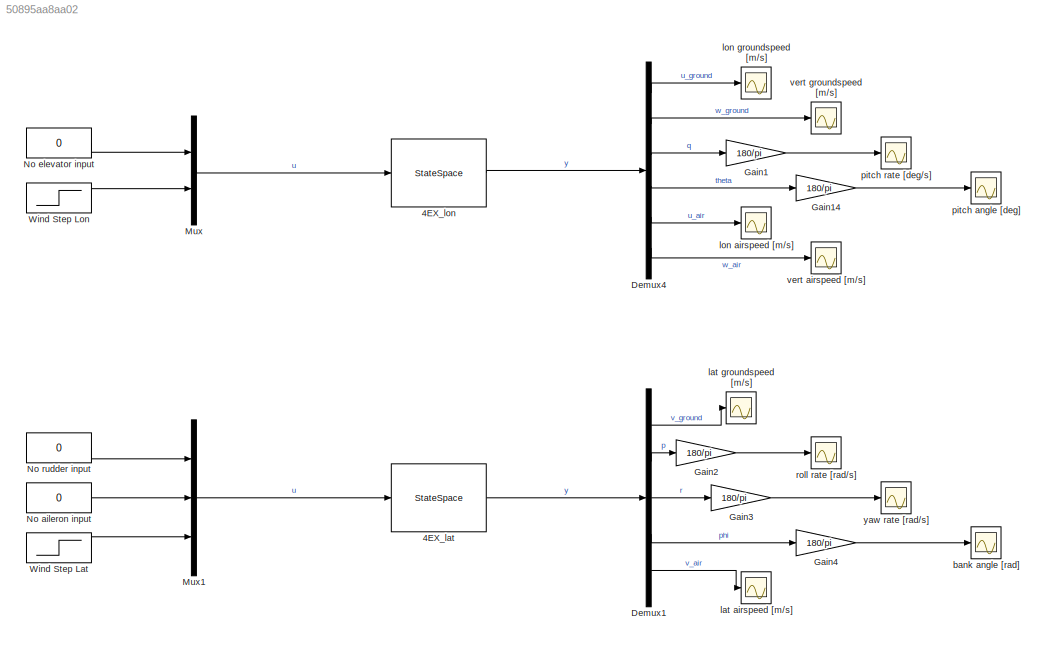
MODEL slx_50895aa8aa02
KIND model
CONFIG AbsTol = auto
CONFIG EnableMultiTasking = off
CONFIG FixedStep = st
CONFIG MaxStep = auto
CONFIG MinStep = auto
CONFIG RelTol = 1e-3
CONFIG SampleTimeConstraint = Unconstrained
CONFIG SolverName = ode4
CONFIG StartTime = 0.0
CONFIG StopTime = simt
WORKSPACE source: mxarray member
WORKSPACE aaaa = [0 0 0 0]
WORKSPACE init_lat = [0 0 0 1]
BLOCK [StateSpace] 4EX_lat
  A = A_lat
  B = B_lat_ext
  C = C_lat_ext
  D = D_lat_ext
  InitialCondition = [0 0 0 0]
  ParameterTunability = Unconstrained
BLOCK [StateSpace] 4EX_lon
  A = A_lon
  B = B_lon_ext
  C = C_lon_ext
  D = D_lon_ext
  InitialCondition = [0 0 0 0]
  ParameterTunability = Unconstrained
BLOCK [Demux] Demux1
  Outputs = 5
BLOCK [Demux] Demux4
  Outputs = 6
BLOCK [Gain] Gain1
  Gain = 180/pi
BLOCK [Gain] Gain14
  Gain = 180/pi
BLOCK [Gain] Gain2
  Gain = 180/pi
BLOCK [Gain] Gain3
  Gain = 180/pi
BLOCK [Gain] Gain4
  Gain = 180/pi
BLOCK [Mux] Mux
  DisplayOption = bar
  Inputs = 2
BLOCK [Mux] Mux1
  DisplayOption = bar
  Inputs = 3
BLOCK [Constant] No aileron input
  Value = 0
BLOCK [Constant] No elevator input
  Value = 0
BLOCK [Constant] No rudder input
  Value = 0
BLOCK [Step] Wind Step Lat
  After = wind_lat
  Before = [0 0 0]
  SampleTime = 0
  Time = w_st_time
BLOCK [Step] Wind Step Lon
  After = wind_lon
  Before = [0 0 0]
  SampleTime = 0
  Time = w_st_time
BLOCK [Scope] bank angle [rad]
  Floating = off
  NumInputPorts = 1
  ScopeSpecificationString = Simulink.scopes.TimeScopeBlockCfg('CurrentConfiguration', extmgr.ConfigurationSet(extmgr.Configuration('Core','General UI',true),extmgr.Configuration('Core','Source UI',true),extmgr.Configuration('Sources','WiredSimulink',true,'DataLoggingVariableName','ScopeData3'),extmgr.Configuration('Visuals','Time Domain',true,'SerializedDisplays',{struct('MinYLimReal','0.46065','MaxYLimReal','1.05993','YLabe...<+1441ch>
BLOCK [Scope] lat airspeed [m//s]
  Floating = off
  NumInputPorts = 1
  ScopeSpecificationString = Simulink.scopes.TimeScopeBlockCfg('CurrentConfiguration', extmgr.ConfigurationSet(extmgr.Configuration('Core','General UI',true),extmgr.Configuration('Core','Source UI',true),extmgr.Configuration('Sources','WiredSimulink',true,'DataLoggingVariableName','ScopeData1'),extmgr.Configuration('Visuals','Time Domain',true,'SerializedDisplays',{struct('MinYLimReal','-6.13812','MaxYLimReal','8.33371','YLab...<+1419ch>
BLOCK [Scope] lat groundspeed [m//s]
  Floating = off
  NumInputPorts = 1
  ScopeSpecificationString = Simulink.scopes.TimeScopeBlockCfg('CurrentConfiguration', extmgr.ConfigurationSet(extmgr.Configuration('Core','General UI',true),extmgr.Configuration('Core','Source UI',true),extmgr.Configuration('Sources','WiredSimulink',true,'DataLoggingVariableName','ScopeData2'),extmgr.Configuration('Visuals','Time Domain',true,'SerializedDisplays',{struct('MinYLimReal','-6.13812','MaxYLimReal','8.33371','YLab...<+1448ch>
BLOCK [Scope] lon airspeed [m//s]
  Floating = off
  NumInputPorts = 1
  ScopeSpecificationString = Simulink.scopes.TimeScopeBlockCfg('CurrentConfiguration', extmgr.ConfigurationSet(extmgr.Configuration('Core','General UI',true),extmgr.Configuration('Core','Source UI',true),extmgr.Configuration('Sources','WiredSimulink',true,'DataLoggingVariableName','ScopeData1'),extmgr.Configuration('Visuals','Time Domain',true,'SerializedDisplays',{struct('MinYLimReal','-68.89733','MaxYLimReal','59.0294','YLa...<+1423ch>
BLOCK [Scope] lon groundspeed [m//s]
  Floating = off
  NumInputPorts = 1
  ScopeSpecificationString = Simulink.scopes.TimeScopeBlockCfg('CurrentConfiguration', extmgr.ConfigurationSet(extmgr.Configuration('Core','General UI',true),extmgr.Configuration('Core','Source UI',true),extmgr.Configuration('Sources','WiredSimulink',true,'DataLoggingVariableName','ScopeData2'),extmgr.Configuration('Visuals','Time Domain',true,'SerializedDisplays',{struct('MinYLimReal','-69.45481','MaxYLimReal','59.50692','YL...<+1408ch>
BLOCK [Scope] pitch angle [deg]
  Floating = off
  NumInputPorts = 1
  ScopeSpecificationString = Simulink.scopes.TimeScopeBlockCfg('CurrentConfiguration', extmgr.ConfigurationSet(extmgr.Configuration('Core','General UI',true),extmgr.Configuration('Core','Source UI',true),extmgr.Configuration('Sources','WiredSimulink',true,'DataLoggingVariableName','ScopeData3'),extmgr.Configuration('Visuals','Time Domain',true,'SerializedDisplays',{struct('MinYLimReal','-1.04635','MaxYLimReal','1.22737','YLab...<+1432ch>
BLOCK [Scope] pitch rate [deg//s]
  Floating = off
  NumInputPorts = 1
  ScopeSpecificationString = Simulink.scopes.TimeScopeBlockCfg('CurrentConfiguration', extmgr.ConfigurationSet(extmgr.Configuration('Core','General UI',true),extmgr.Configuration('Core','Source UI',true),extmgr.Configuration('Sources','WiredSimulink',true,'DataLoggingVariableName','ScopeData4'),extmgr.Configuration('Visuals','Time Domain',true,'SerializedDisplays',{struct('MinYLimReal','-0.17338','MaxYLimReal','0.14856','YLab...<+1415ch>
BLOCK [Scope] roll rate [rad//s]
  Floating = off
  NumInputPorts = 1
  ScopeSpecificationString = Simulink.scopes.TimeScopeBlockCfg('CurrentConfiguration', extmgr.ConfigurationSet(extmgr.Configuration('Core','General UI',true),extmgr.Configuration('Core','Source UI',true),extmgr.Configuration('Sources','WiredSimulink',true,'DataLoggingVariableName','ScopeData6'),extmgr.Configuration('Visuals','Time Domain',true,'SerializedDisplays',{struct('MinYLimReal','-0.05702','MaxYLimReal','0.04503','YLab...<+1441ch>
BLOCK [Scope] vert airspeed [m//s]
  Floating = off
  NumInputPorts = 1
  ScopeSpecificationString = Simulink.scopes.TimeScopeBlockCfg('CurrentConfiguration', extmgr.ConfigurationSet(extmgr.Configuration('Core','General UI',true),extmgr.Configuration('Core','Source UI',true),extmgr.Configuration('Sources','WiredSimulink',true,'DataLoggingVariableName','ScopeData2'),extmgr.Configuration('Visuals','Time Domain',true,'SerializedDisplays',{struct('MinYLimReal','-1.06683','MaxYLimReal','9.57124','YLab...<+1422ch>
BLOCK [Scope] vert groundspeed [m//s]
  Floating = off
  NumInputPorts = 1
  ScopeSpecificationString = Simulink.scopes.TimeScopeBlockCfg('CurrentConfiguration', extmgr.ConfigurationSet(extmgr.Configuration('Core','General UI',true),extmgr.Configuration('Core','Source UI',true),extmgr.Configuration('Sources','WiredSimulink',true,'DataLoggingVariableName','ScopeData5'),extmgr.Configuration('Visuals','Time Domain',true,'SerializedDisplays',{struct('MinYLimReal','-11.1484','MaxYLimReal','10.84417','YLa...<+1424ch>
BLOCK [Scope] yaw rate [rad//s]
  Floating = off
  NumInputPorts = 1
  ScopeSpecificationString = Simulink.scopes.TimeScopeBlockCfg('CurrentConfiguration', extmgr.ConfigurationSet(extmgr.Configuration('Core','General UI',true),extmgr.Configuration('Core','Source UI',true),extmgr.Configuration('Sources','WiredSimulink',true,'DataLoggingVariableName','ScopeData4'),extmgr.Configuration('Visuals','Time Domain',true,'SerializedDisplays',{struct('MinYLimReal','-0.03218','MaxYLimReal','0.28959','YLab...<+1441ch>
LINE 4EX_lat:1 -> Demux1:1
LINE 4EX_lon:1 -> Demux4:1
LINE Demux1:1 -> lat groundspeed [m//s]:1
LINE Demux1:2 -> Gain2:1
LINE Demux1:3 -> Gain3:1
LINE Demux1:4 -> Gain4:1
LINE Demux1:5 -> lat airspeed [m//s]:1
LINE Demux4:1 -> lon groundspeed [m//s]:1
LINE Demux4:2 -> vert groundspeed [m//s]:1
LINE Demux4:3 -> Gain1:1
LINE Demux4:4 -> Gain14:1
LINE Demux4:5 -> lon airspeed [m//s]:1
LINE Demux4:6 -> vert airspeed [m//s]:1
LINE Gain14:1 -> pitch angle [deg]:1
LINE Gain1:1 -> pitch rate [deg//s]:1
LINE Gain2:1 -> roll rate [rad//s]:1
LINE Gain3:1 -> yaw rate [rad//s]:1
LINE Gain4:1 -> bank angle [rad]:1
LINE Mux1:1 -> 4EX_lat:1
LINE Mux:1 -> 4EX_lon:1
LINE No aileron input:1 -> Mux1:2
LINE No elevator input:1 -> Mux:1
LINE No rudder input:1 -> Mux1:1
LINE Wind Step Lat:1 -> Mux1:3
LINE Wind Step Lon:1 -> Mux:2
